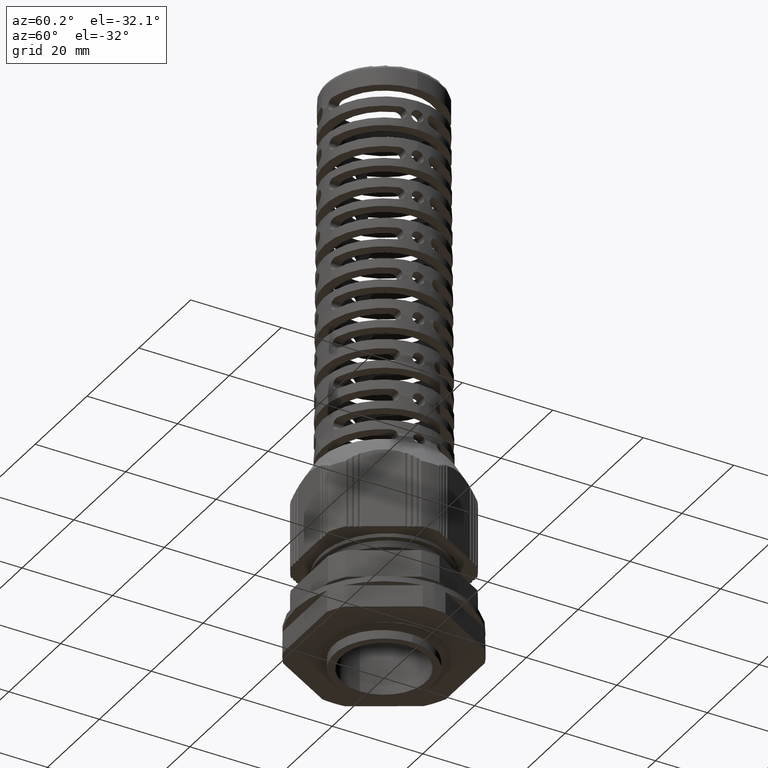
[diagram: clean part render]
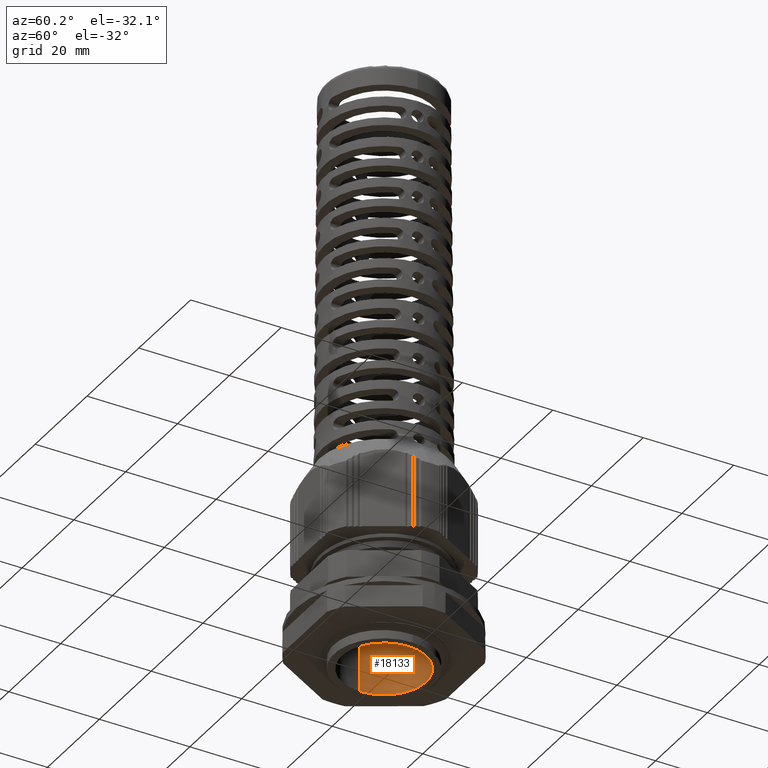
[diagram: same view with one face highlighted and labeled with its STEP entity id]
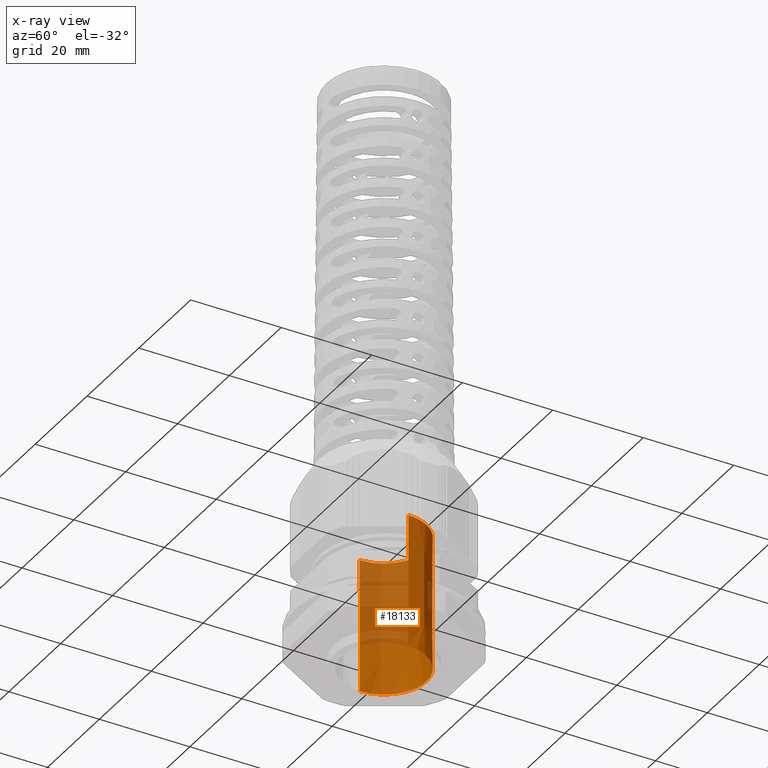
[diagram: x-ray of the same camera — body ghosted, the highlighted face saturated]
A machine part, auxiliary view. The second image highlights one B-rep face of the part: STEP entity #18133.
The next image is the same camera in x-ray: the body ghosted, the highlighted face saturated — about 40% of this face is hidden behind the body in this view.
In plain terms, the highlighted conical surface has half-angle 0.079 deg.
Its self-contained STEP definition (entity closure, byte-faithful):
#3806 = EDGE_LOOP ( 'NONE', ( #8137, #8104, #8208, #8120 ) ) ;
#6495 = LINE ( 'NONE', #6498, #26492 ) ;
#6498 = CARTESIAN_POINT ( 'NONE',  ( -9.390909090909096000, 1.150054675926560500E-015, 29.70000000000001700 ) ) ;
#6499 = DIRECTION ( 'NONE',  ( -0.001377409161669001300, 1.686839720954181400E-019, 0.9999990513715506500 ) ) ;
#7134 = VERTEX_POINT ( 'NONE', #14169 ) ;
#7157 = VERTEX_POINT ( 'NONE', #14198 ) ;
#7160 = VERTEX_POINT ( 'NONE', #14199 ) ;
#7199 = VERTEX_POINT ( 'NONE', #14267 ) ;
#8104 = ORIENTED_EDGE ( 'NONE', *, *, #10049, .F. ) ;
#8120 = ORIENTED_EDGE ( 'NONE', *, *, #10110, .T. ) ;
#8137 = ORIENTED_EDGE ( 'NONE', *, *, #9933, .F. ) ;
#8208 = ORIENTED_EDGE ( 'NONE', *, *, #9913, .T. ) ;
#9913 = EDGE_CURVE ( 'NONE', #7160, #7157, #11656, .T. ) ;
#9933 = EDGE_CURVE ( 'NONE', #7199, #7134, #6495, .T. ) ;
#10049 = EDGE_CURVE ( 'NONE', #7160, #7199, #25892, .T. ) ;
#10110 = EDGE_CURVE ( 'NONE', #7157, #7134, #25962, .T. ) ;
#11656 = LINE ( 'NONE', #11659, #26467 ) ;
#11659 = CARTESIAN_POINT ( 'NONE',  ( 9.390909090909096000, 0.0000000000000000000, 29.70000000000001700 ) ) ;
#11672 = DIRECTION ( 'NONE',  ( 0.001377409161669001300, 0.0000000000000000000, 0.9999990513715506500 ) ) ;
#13168 = DIRECTION ( 'NONE',  ( 1.000000000000000000, 0.0000000000000000000, 0.0000000000000000000 ) ) ;
#13172 = CARTESIAN_POINT ( 'NONE',  ( 0.0000000000000000000, 0.0000000000000000000, 0.0000000000000000000 ) ) ;
#13175 = DIRECTION ( 'NONE',  ( 0.0000000000000000000, -0.0000000000000000000, 1.000000000000000000 ) ) ;
#13740 = CARTESIAN_POINT ( 'NONE',  ( 0.0000000000000000000, 0.0000000000000000000, 29.69999999999999600 ) ) ;
#13746 = DIRECTION ( 'NONE',  ( 0.0000000000000000000, 0.0000000000000000000, 1.000000000000000000 ) ) ;
#13747 = DIRECTION ( 'NONE',  ( -1.000000000000000000, 0.0000000000000000000, 0.0000000000000000000 ) ) ;
#14169 = CARTESIAN_POINT ( 'NONE',  ( -9.390909090909096000, 1.150054675926560500E-015, 29.69999999999999600 ) ) ;
#14198 = CARTESIAN_POINT ( 'NONE',  ( 9.390909090909096000, 0.0000000000000000000, 29.69999999999999600 ) ) ;
#14199 = CARTESIAN_POINT ( 'NONE',  ( 9.349999999999999600, 0.0000000000000000000, 0.0000000000000000000 ) ) ;
#14267 = CARTESIAN_POINT ( 'NONE',  ( -9.349999999999999600, 1.147549716564667700E-015, 0.0000000000000000000 ) ) ;
#15108 = AXIS2_PLACEMENT_3D ( 'NONE', #16597, #16584, #16559 ) ;
#15133 = CONICAL_SURFACE ( 'NONE', #15108, 9.390909090909096000, 0.001377409597219005600 ) ;
#16559 = DIRECTION ( 'NONE',  ( 1.000000000000000000, 0.0000000000000000000, 0.0000000000000000000 ) ) ;
#16584 = DIRECTION ( 'NONE',  ( 0.0000000000000000000, -0.0000000000000000000, 1.000000000000000000 ) ) ;
#16586 = FACE_OUTER_BOUND ( 'NONE', #3806, .T. ) ;
#16597 = CARTESIAN_POINT ( 'NONE',  ( 0.0000000000000000000, 0.0000000000000000000, 29.70000000000001700 ) ) ;
#18133 = ADVANCED_FACE ( 'NONE', ( #16586 ), #15133, .F. ) ;
#25880 = AXIS2_PLACEMENT_3D ( 'NONE', #13172, #13175, #13168 ) ;
#25892 = CIRCLE ( 'NONE', #25880, 9.349999999999999600 ) ;
#25942 = AXIS2_PLACEMENT_3D ( 'NONE', #13740, #13746, #13747 ) ;
#25962 = CIRCLE ( 'NONE', #25942, 9.390909090909096000 ) ;
#26467 = VECTOR ( 'NONE', #11672, 1000.000000000000100 ) ;
#26492 = VECTOR ( 'NONE', #6499, 1000.000000000000100 ) ;